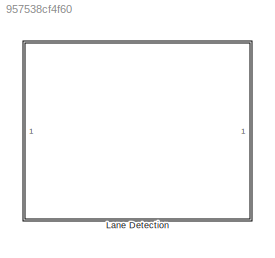
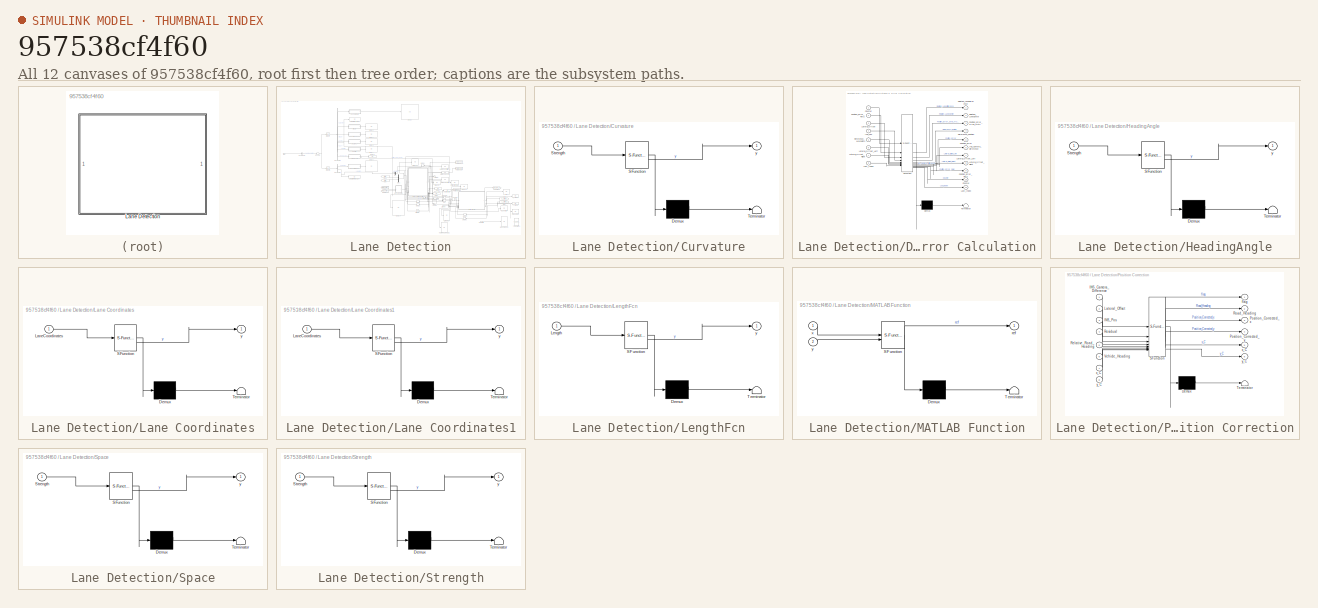
[diagram: thumbnail index - all 12 canvases of the model, root first then tree order]
MODEL slx_957538cf4f60
KIND library
CONFIG AbsTol = auto
CONFIG EnableMultiTasking = off
CONFIG FixedStep = auto
CONFIG MaxStep = auto
CONFIG MinStep = auto
CONFIG RelTol = 1e-3
CONFIG SampleTimeConstraint = Unconstrained
CONFIG SolverName = VariableStepAuto
CONFIG StartTime = 0.0
CONFIG StopTime = 10.0
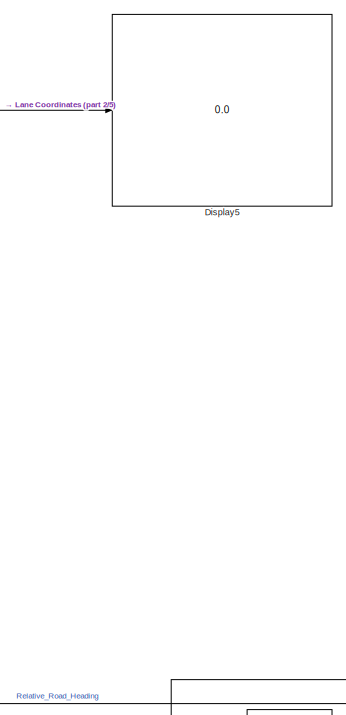
[diagram: Lane Detection - part 1/5, top center region]
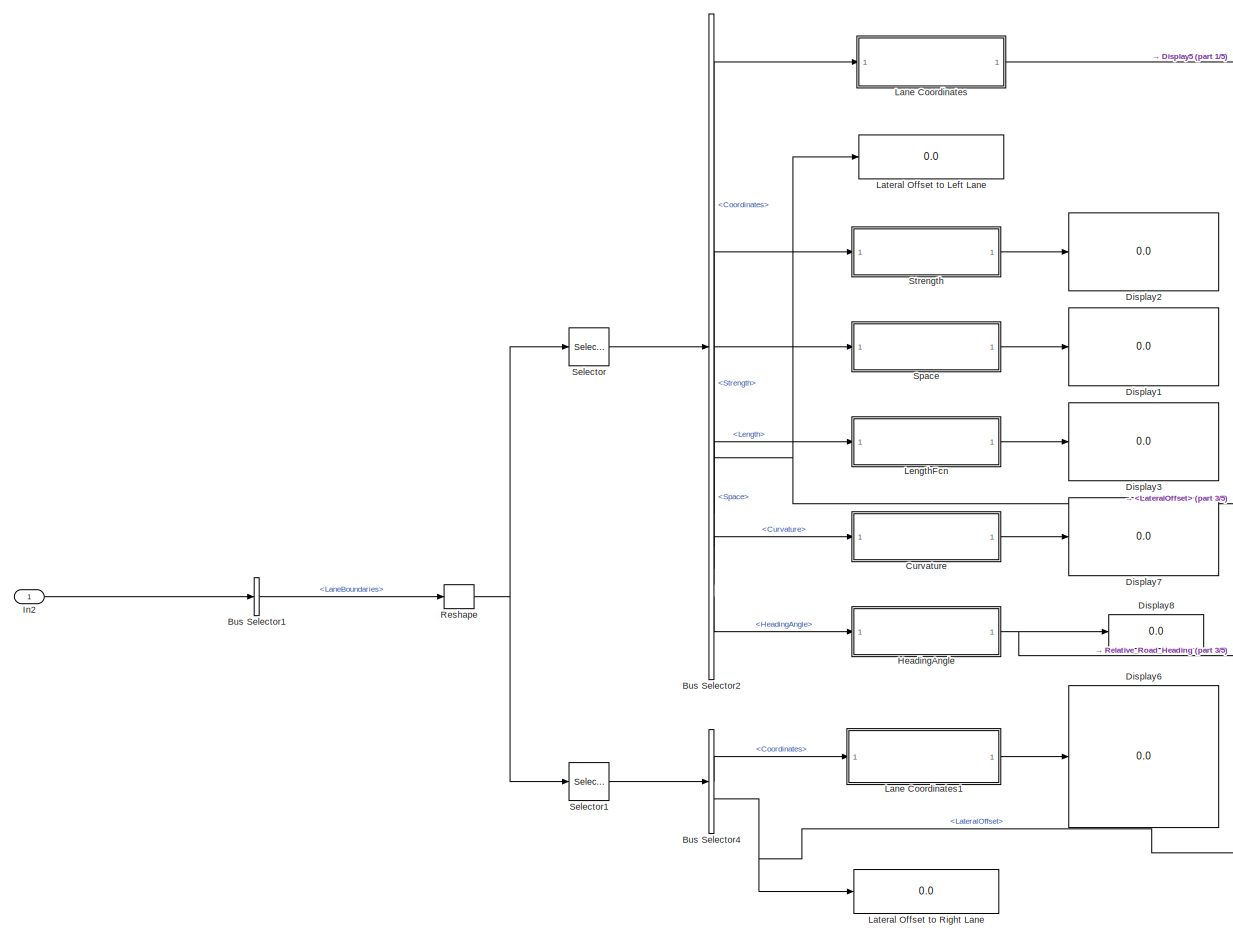
[diagram: Lane Detection - part 2/5, top left region]
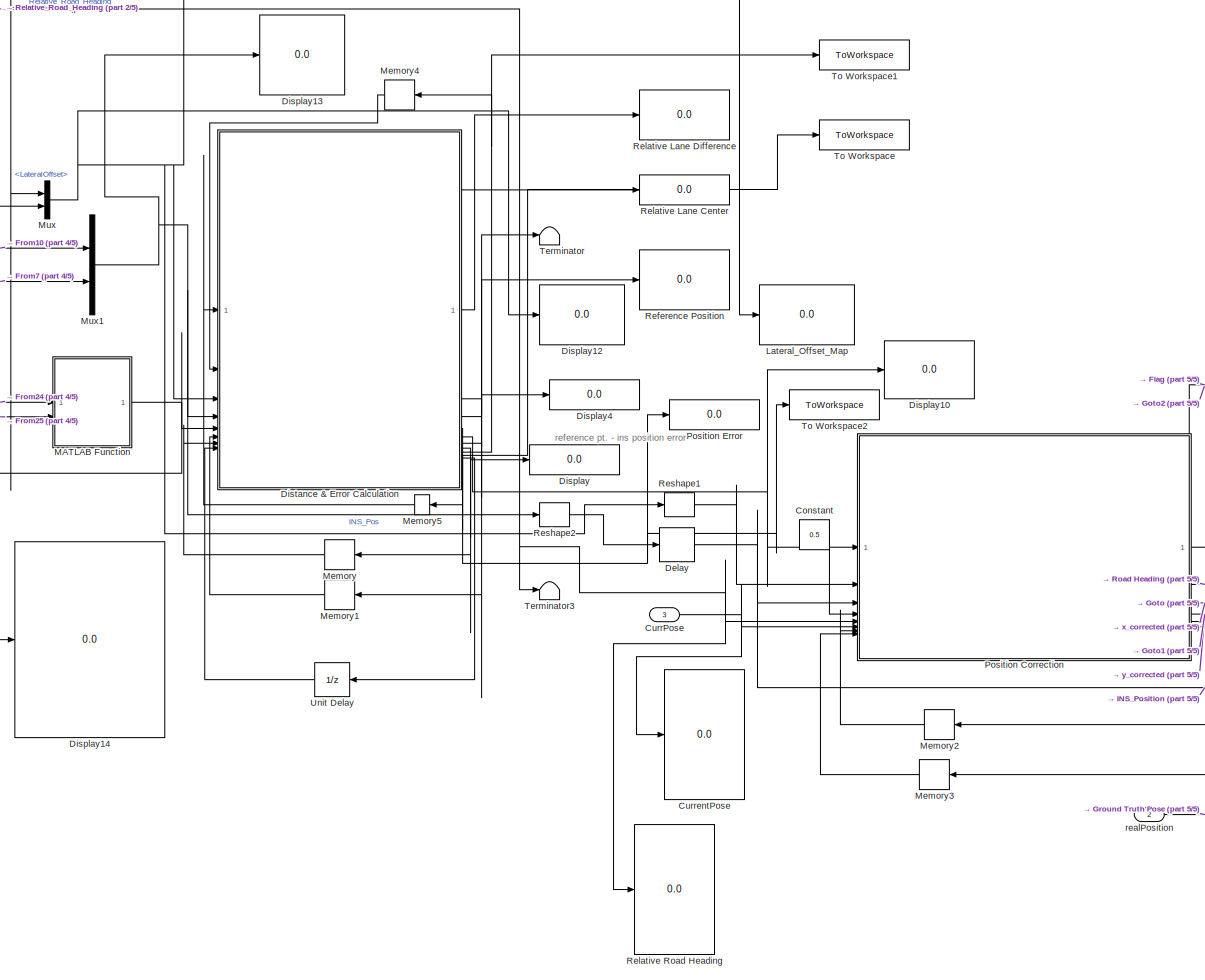
[diagram: Lane Detection - part 3/5, bottom center region]
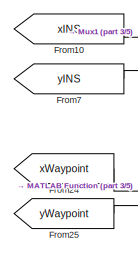
[diagram: Lane Detection - part 4/5, central region]
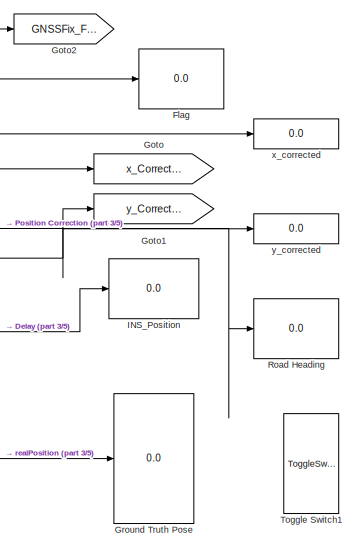
[diagram: Lane Detection - part 5/5, bottom right region]
BLOCK [SubSystem] Lane Detection
BLOCK [BusSelector] Lane Detection/Bus Selector1
  OutputSignals = LaneBoundaries
BLOCK [BusSelector] Lane Detection/Bus Selector2
  OutputSignals = Coordinates,LateralOffset,Strength,Space,Length,Curvature,HeadingAngle
BLOCK [BusSelector] Lane Detection/Bus Selector4
  OutputSignals = Coordinates,LateralOffset
BLOCK [Constant] Lane Detection/Constant
  Value = 0.5
BLOCK [Inport] Lane Detection/CurrPose
  Port = 3
BLOCK [Display] Lane Detection/CurrentPose
  Decimation = 1
BLOCK [SubSystem] Lane Detection/Curvature
  Commented = through
  ErrorFcn = Stateflow.Translate.translate
  PermitHierarchicalResolution = ExplicitOnly
  SFBlockType = MATLAB Function
  TreatAsAtomicUnit = on
BLOCK [Demux] Lane Detection/Curvature/ Demux 
  Outputs = 1
BLOCK [S-Function] Lane Detection/Curvature/ SFunction 
  EnableBusSupport = on
  FunctionName = sf_sfun
  PortCounts = [1 2]
  SFcnIsStateOwnerBlock = off
  SFunctionDeploymentMode = off
  Tag = Stateflow S-Function 70
BLOCK [Terminator] Lane Detection/Curvature/ Terminator 
BLOCK [Inport] Lane Detection/Curvature/Strength
BLOCK [Outport] Lane Detection/Curvature/y
BLOCK [Delay] Lane Detection/Delay
  Commented = through
  DelayLength = 1
  InputPortMap = u0
BLOCK [Display] Lane Detection/Display
  Decimation = 1
BLOCK [Display] Lane Detection/Display1
  Decimation = 1
BLOCK [Display] Lane Detection/Display10
  Decimation = 1
BLOCK [Display] Lane Detection/Display12
  Decimation = 1
BLOCK [Display] Lane Detection/Display13
  Decimation = 1
BLOCK [Display] Lane Detection/Display14
  Decimation = 1
BLOCK [Display] Lane Detection/Display2
  Decimation = 1
BLOCK [Display] Lane Detection/Display3
  Decimation = 1
BLOCK [Display] Lane Detection/Display4
  Decimation = 1
BLOCK [Display] Lane Detection/Display5
  Decimation = 1
BLOCK [Display] Lane Detection/Display6
  Decimation = 1
BLOCK [Display] Lane Detection/Display7
  Decimation = 1
BLOCK [Display] Lane Detection/Display8
  Decimation = 1
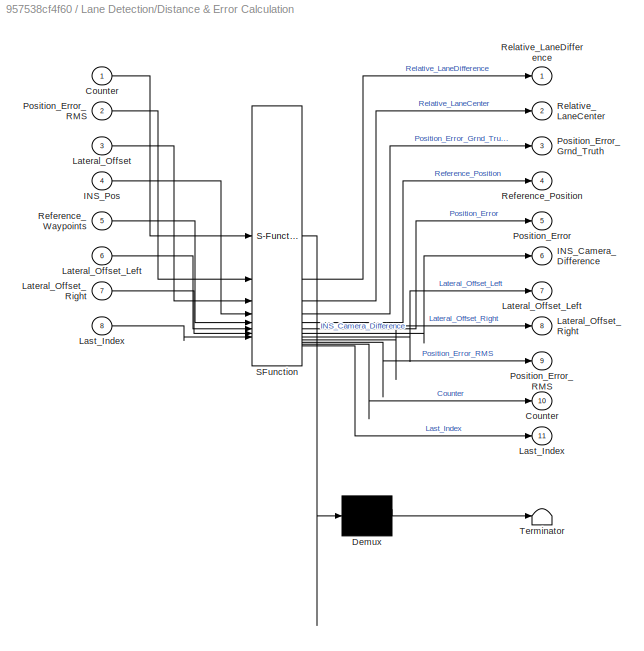
BLOCK [SubSystem] Lane Detection/Distance & Error Calculation
  ErrorFcn = Stateflow.Translate.translate
  PermitHierarchicalResolution = ExplicitOnly
  SFBlockType = MATLAB Function
  TreatAsAtomicUnit = on
BLOCK [Demux] Lane Detection/Distance & Error Calculation/ Demux 
  Outputs = 1
BLOCK [S-Function] Lane Detection/Distance & Error Calculation/ SFunction 
  EnableBusSupport = on
  FunctionName = sf_sfun
  PortCounts = [8 12]
  SFcnIsStateOwnerBlock = off
  SFunctionDeploymentMode = off
  Tag = Stateflow S-Function 5
BLOCK [Terminator] Lane Detection/Distance & Error Calculation/ Terminator 
BLOCK [Outport] Lane Detection/Distance & Error Calculation/Counter
  Port = 10
BLOCK [Inport] Lane Detection/Distance & Error Calculation/Counter 
BLOCK [Outport] Lane Detection/Distance & Error Calculation/INS_Camera_Difference
  Port = 6
BLOCK [Inport] Lane Detection/Distance & Error Calculation/INS_Pos
  Port = 4
BLOCK [Outport] Lane Detection/Distance & Error Calculation/Last_Index
  Port = 11
BLOCK [Inport] Lane Detection/Distance & Error Calculation/Last_Index 
  Port = 8
BLOCK [Inport] Lane Detection/Distance & Error Calculation/Lateral_Offset
  Port = 3
BLOCK [Outport] Lane Detection/Distance & Error Calculation/Lateral_Offset_Left
  Port = 7
BLOCK [Inport] Lane Detection/Distance & Error Calculation/Lateral_Offset_Left 
  Port = 6
BLOCK [Outport] Lane Detection/Distance & Error Calculation/Lateral_Offset_Right
  Port = 8
BLOCK [Inport] Lane Detection/Distance & Error Calculation/Lateral_Offset_Right 
  Port = 7
BLOCK [Outport] Lane Detection/Distance & Error Calculation/Position_Error
  Port = 5
BLOCK [Outport] Lane Detection/Distance & Error Calculation/Position_Error_Grnd_Truth
  Port = 3
BLOCK [Outport] Lane Detection/Distance & Error Calculation/Position_Error_RMS
  Port = 9
BLOCK [Inport] Lane Detection/Distance & Error Calculation/Position_Error_RMS 
  Port = 2
BLOCK [Outport] Lane Detection/Distance & Error Calculation/Reference_Position
  Port = 4
BLOCK [Inport] Lane Detection/Distance & Error Calculation/Reference_Waypoints
  Port = 5
BLOCK [Outport] Lane Detection/Distance & Error Calculation/Relative_LaneCenter
  Port = 2
BLOCK [Outport] Lane Detection/Distance & Error Calculation/Relative_LaneDifference
BLOCK [Display] Lane Detection/Flag
  Decimation = 1
BLOCK [From] Lane Detection/From10
  GotoTag = xINS
  TagVisibility = global
BLOCK [From] Lane Detection/From24
  GotoTag = xWaypoint
  TagVisibility = global
BLOCK [From] Lane Detection/From25
  GotoTag = yWaypoint
  TagVisibility = global
BLOCK [From] Lane Detection/From7
  GotoTag = yINS
  TagVisibility = global
BLOCK [Goto] Lane Detection/Goto
  GotoTag = x_Corrected
  TagVisibility = global
BLOCK [Goto] Lane Detection/Goto1
  GotoTag = y_Corrected
  TagVisibility = global
BLOCK [Goto] Lane Detection/Goto2
  GotoTag = GNSSFix_Flag
  TagVisibility = global
BLOCK [Display] Lane Detection/Ground Truth Pose
  Decimation = 1
BLOCK [SubSystem] Lane Detection/HeadingAngle
  Commented = through
  ErrorFcn = Stateflow.Translate.translate
  PermitHierarchicalResolution = ExplicitOnly
  SFBlockType = MATLAB Function
  TreatAsAtomicUnit = on
BLOCK [Demux] Lane Detection/HeadingAngle/ Demux 
  Outputs = 1
BLOCK [S-Function] Lane Detection/HeadingAngle/ SFunction 
  EnableBusSupport = on
  FunctionName = sf_sfun
  PortCounts = [1 2]
  SFcnIsStateOwnerBlock = off
  SFunctionDeploymentMode = off
  Tag = Stateflow S-Function 71
BLOCK [Terminator] Lane Detection/HeadingAngle/ Terminator 
BLOCK [Inport] Lane Detection/HeadingAngle/Strength
BLOCK [Outport] Lane Detection/HeadingAngle/y
BLOCK [Display] Lane Detection/INS_Position
  Decimation = 1
BLOCK [Inport] Lane Detection/In2
BLOCK [SubSystem] Lane Detection/Lane Coordinates
  ErrorFcn = Stateflow.Translate.translate
  PermitHierarchicalResolution = ExplicitOnly
  SFBlockType = MATLAB Function
  TreatAsAtomicUnit = on
BLOCK [Demux] Lane Detection/Lane Coordinates/ Demux 
  Outputs = 1
BLOCK [S-Function] Lane Detection/Lane Coordinates/ SFunction 
  EnableBusSupport = on
  FunctionName = sf_sfun
  PortCounts = [1 2]
  SFcnIsStateOwnerBlock = off
  SFunctionDeploymentMode = off
  Tag = Stateflow S-Function 12
BLOCK [Terminator] Lane Detection/Lane Coordinates/ Terminator 
BLOCK [Inport] Lane Detection/Lane Coordinates/LaneCoordinates
BLOCK [Outport] Lane Detection/Lane Coordinates/y
BLOCK [SubSystem] Lane Detection/Lane Coordinates1
  ErrorFcn = Stateflow.Translate.translate
  PermitHierarchicalResolution = ExplicitOnly
  SFBlockType = MATLAB Function
  TreatAsAtomicUnit = on
BLOCK [Demux] Lane Detection/Lane Coordinates1/ Demux 
  Outputs = 1
BLOCK [S-Function] Lane Detection/Lane Coordinates1/ SFunction 
  EnableBusSupport = on
  FunctionName = sf_sfun
  PortCounts = [1 2]
  SFcnIsStateOwnerBlock = off
  SFunctionDeploymentMode = off
  Tag = Stateflow S-Function 16
BLOCK [Terminator] Lane Detection/Lane Coordinates1/ Terminator 
BLOCK [Inport] Lane Detection/Lane Coordinates1/LaneCoordinates
BLOCK [Outport] Lane Detection/Lane Coordinates1/y
BLOCK [Display] Lane Detection/Lateral Offset to Left Lane
  Decimation = 1
BLOCK [Display] Lane Detection/Lateral Offset to Right Lane
  Decimation = 1
BLOCK [Display] Lane Detection/Lateral_Offset_Map
  Decimation = 1
BLOCK [SubSystem] Lane Detection/LengthFcn
  Commented = through
  ErrorFcn = Stateflow.Translate.translate
  PermitHierarchicalResolution = ExplicitOnly
  SFBlockType = MATLAB Function
  TreatAsAtomicUnit = on
BLOCK [Demux] Lane Detection/LengthFcn/ Demux 
  Outputs = 1
BLOCK [S-Function] Lane Detection/LengthFcn/ SFunction 
  EnableBusSupport = on
  FunctionName = sf_sfun
  PortCounts = [1 2]
  SFcnIsStateOwnerBlock = off
  SFunctionDeploymentMode = off
  Tag = Stateflow S-Function 68
BLOCK [Terminator] Lane Detection/LengthFcn/ Terminator 
BLOCK [Inport] Lane Detection/LengthFcn/Length
BLOCK [Outport] Lane Detection/LengthFcn/y
BLOCK [SubSystem] Lane Detection/MATLAB Function
  ErrorFcn = Stateflow.Translate.translate
  PermitHierarchicalResolution = ExplicitOnly
  SFBlockType = MATLAB Function
  TreatAsAtomicUnit = on
BLOCK [Demux] Lane Detection/MATLAB Function/ Demux 
  Outputs = 1
BLOCK [S-Function] Lane Detection/MATLAB Function/ SFunction 
  EnableBusSupport = on
  FunctionName = sf_sfun
  PortCounts = [2 2]
  SFcnIsStateOwnerBlock = off
  SFunctionDeploymentMode = off
  Tag = Stateflow S-Function 30
BLOCK [Terminator] Lane Detection/MATLAB Function/ Terminator 
BLOCK [Outport] Lane Detection/MATLAB Function/ref
BLOCK [Inport] Lane Detection/MATLAB Function/x
BLOCK [Inport] Lane Detection/MATLAB Function/y
  Port = 2
BLOCK [Memory] Lane Detection/Memory
  InitialCondition = LaneWidth/2
BLOCK [Memory] Lane Detection/Memory1
  InitialCondition = LaneWidth/2
BLOCK [Memory] Lane Detection/Memory2
BLOCK [Memory] Lane Detection/Memory3
BLOCK [Memory] Lane Detection/Memory4
BLOCK [Memory] Lane Detection/Memory5
BLOCK [Mux] Lane Detection/Mux
  DisplayOption = bar
  Inputs = 2
BLOCK [Mux] Lane Detection/Mux1
  DisplayOption = bar
  Inputs = 2
BLOCK [SubSystem] Lane Detection/Position Correction
  ErrorFcn = Stateflow.Translate.translate
  PermitHierarchicalResolution = ExplicitOnly
  SFBlockType = MATLAB Function
  TreatAsAtomicUnit = on
BLOCK [Demux] Lane Detection/Position Correction/ Demux 
  Outputs = 1
BLOCK [S-Function] Lane Detection/Position Correction/ SFunction 
  EnableBusSupport = on
  FunctionName = sf_sfun
  PortCounts = [8 7]
  SFcnIsStateOwnerBlock = off
  SFunctionDeploymentMode = off
  Tag = Stateflow S-Function 34
BLOCK [Terminator] Lane Detection/Position Correction/ Terminator 
BLOCK [Inport] Lane Detection/Position Correction/INS_Camera_Difference
BLOCK [Inport] Lane Detection/Position Correction/INS_Pos
  Port = 3
BLOCK [Inport] Lane Detection/Position Correction/Lateral_Offset
  Port = 2
BLOCK [Outport] Lane Detection/Position Correction/Position_Corrected_x
  Port = 3
BLOCK [Outport] Lane Detection/Position Correction/Position_Corrected_y
  Port = 4
BLOCK [Inport] Lane Detection/Position Correction/Relative_Road_Heading
  Port = 5
BLOCK [Inport] Lane Detection/Position Correction/Residual
  Port = 4
BLOCK [Outport] Lane Detection/Position Correction/Road_Heading
  Port = 2
BLOCK [Inport] Lane Detection/Position Correction/Vehicle_Heading
  Port = 6
BLOCK [Outport] Lane Detection/Position Correction/flag
BLOCK [Outport] Lane Detection/Position Correction/x_C
  Port = 5
BLOCK [Inport] Lane Detection/Position Correction/x_C 
  Port = 7
BLOCK [Outport] Lane Detection/Position Correction/y_C
  Port = 6
BLOCK [Inport] Lane Detection/Position Correction/y_C 
  Port = 8
BLOCK [Display] Lane Detection/Position Error
  Decimation = 1
BLOCK [Display] Lane Detection/Reference Position
  Decimation = 1
BLOCK [Display] Lane Detection/Relative Lane Center
  Decimation = 1
BLOCK [Display] Lane Detection/Relative Lane Difference
  Decimation = 1
BLOCK [Display] Lane Detection/Relative Road Heading
  Decimation = 1
BLOCK [Reshape] Lane Detection/Reshape
  OutputDimensionality = Customize
  OutputDimensions = [500, 1]
BLOCK [Reshape] Lane Detection/Reshape1
  OutputDimensionality = Column vector (2-D)
BLOCK [Reshape] Lane Detection/Reshape2
  OutputDimensionality = Column vector (2-D)
BLOCK [Display] Lane Detection/Road Heading
  Decimation = 1
BLOCK [Selector] Lane Detection/Selector
  IndexOptions = Index vector (dialog)
  Indices = [1]
  InputPortWidth = 500
  OutputSizes = 1
BLOCK [Selector] Lane Detection/Selector1
  IndexOptions = Index vector (dialog)
  Indices = [2]
  InputPortWidth = 500
  OutputSizes = 1
BLOCK [SubSystem] Lane Detection/Space
  Commented = through
  ErrorFcn = Stateflow.Translate.translate
  PermitHierarchicalResolution = ExplicitOnly
  SFBlockType = MATLAB Function
  TreatAsAtomicUnit = on
BLOCK [Demux] Lane Detection/Space/ Demux 
  Outputs = 1
BLOCK [S-Function] Lane Detection/Space/ SFunction 
  EnableBusSupport = on
  FunctionName = sf_sfun
  PortCounts = [1 2]
  SFcnIsStateOwnerBlock = off
  SFunctionDeploymentMode = off
  Tag = Stateflow S-Function 69
BLOCK [Terminator] Lane Detection/Space/ Terminator 
BLOCK [Inport] Lane Detection/Space/Strength
BLOCK [Outport] Lane Detection/Space/y
BLOCK [SubSystem] Lane Detection/Strength
  Commented = through
  ErrorFcn = Stateflow.Translate.translate
  PermitHierarchicalResolution = ExplicitOnly
  SFBlockType = MATLAB Function
  TreatAsAtomicUnit = on
BLOCK [Demux] Lane Detection/Strength/ Demux 
  Outputs = 1
BLOCK [S-Function] Lane Detection/Strength/ SFunction 
  EnableBusSupport = on
  FunctionName = sf_sfun
  PortCounts = [1 2]
  SFcnIsStateOwnerBlock = off
  SFunctionDeploymentMode = off
  Tag = Stateflow S-Function 67
BLOCK [Terminator] Lane Detection/Strength/ Terminator 
BLOCK [Inport] Lane Detection/Strength/Strength
BLOCK [Outport] Lane Detection/Strength/y
BLOCK [Terminator] Lane Detection/Terminator
BLOCK [Terminator] Lane Detection/Terminator3
BLOCK [ToWorkspace] Lane Detection/To Workspace
  FixptAsFi = on
  MaxDataPoints = inf
  SampleTime = -1
  Save2DSignal = 2-D array (concatenate along first dimension)
  SaveFormat = Structure
  VariableName = Counter
BLOCK [ToWorkspace] Lane Detection/To Workspace1
  FixptAsFi = on
  MaxDataPoints = inf
  SampleTime = -1
  Save2DSignal = 2-D array (concatenate along first dimension)
  SaveFormat = Structure
  VariableName = Pos_Err_Squared
BLOCK [ToWorkspace] Lane Detection/To Workspace2
  FixptAsFi = on
  MaxDataPoints = inf
  SampleTime = -1
  SaveFormat = Timeseries
  VariableName = PositionError
BLOCK [ToggleSwitchBlock] Lane Detection/Toggle Switch1
BLOCK [UnitDelay] Lane Detection/Unit Delay
  HasFrameUpgradeWarning = on
  SampleTime = -1
BLOCK [Inport] Lane Detection/realPosition
  Port = 2
BLOCK [Display] Lane Detection/x_corrected
  Decimation = 1
BLOCK [Display] Lane Detection/y_corrected
  Decimation = 1
ANNOTATION Lane Detection: reference pt. - ins position error
LINE Lane Detection/Bus Selector1:1 -> Lane Detection/Reshape:1
LINE Lane Detection/Bus Selector2:1 -> Lane Detection/Lane Coordinates:1
NET Lane Detection/Bus Selector2:2 -> Lane Detection/Lateral Offset to Left Lane:1, Lane Detection/Mux:1
LINE Lane Detection/Bus Selector2:3 -> Lane Detection/Strength:1
LINE Lane Detection/Bus Selector2:4 -> Lane Detection/Space:1
LINE Lane Detection/Bus Selector2:5 -> Lane Detection/LengthFcn:1
LINE Lane Detection/Bus Selector2:6 -> Lane Detection/Curvature:1
LINE Lane Detection/Bus Selector2:7 -> Lane Detection/HeadingAngle:1
LINE Lane Detection/Bus Selector4:1 -> Lane Detection/Lane Coordinates1:1
NET Lane Detection/Bus Selector4:2 -> Lane Detection/Lateral Offset to Right Lane:1, Lane Detection/Mux:2
LINE Lane Detection/Constant:1 -> Lane Detection/Position Correction:4
NET Lane Detection/CurrPose:1 -> Lane Detection/CurrentPose:1, Lane Detection/Position Correction:6
LINE Lane Detection/Curvature:1 -> Lane Detection/Display7:1
NET Lane Detection/Delay:1 -> Lane Detection/INS_Position:1, Lane Detection/Position Correction:3
LINE Lane Detection/Distance & Error Calculation:1 -> Lane Detection/Relative Lane Difference:1
NET Lane Detection/Distance & Error Calculation:10 -> Lane Detection/Memory5:1, Lane Detection/To Workspace:1
LINE Lane Detection/Distance & Error Calculation:11 -> Lane Detection/Unit Delay:1
LINE Lane Detection/Distance & Error Calculation:2 -> Lane Detection/Relative Lane Center:1
LINE Lane Detection/Distance & Error Calculation:3 -> Lane Detection/Terminator:1
LINE Lane Detection/Distance & Error Calculation:4 -> Lane Detection/Reference Position:1
NET Lane Detection/Distance & Error Calculation:5 -> Lane Detection/Position Error:1, Lane Detection/To Workspace2:1
NET Lane Detection/Distance & Error Calculation:6 -> Lane Detection/Display10:1, Lane Detection/Position Correction:1
NET Lane Detection/Distance & Error Calculation:7 -> Lane Detection/Display4:1, Lane Detection/Memory1:1
NET Lane Detection/Distance & Error Calculation:8 -> Lane Detection/Display:1, Lane Detection/Memory:1
NET Lane Detection/Distance & Error Calculation:9 -> Lane Detection/Memory4:1, Lane Detection/To Workspace1:1
LINE Lane Detection/From10:1 -> Lane Detection/Mux1:1
LINE Lane Detection/From24:1 -> Lane Detection/MATLAB Function:1
LINE Lane Detection/From25:1 -> Lane Detection/MATLAB Function:2
LINE Lane Detection/From7:1 -> Lane Detection/Mux1:2
NET Lane Detection/HeadingAngle:1 -> Lane Detection/Display8:1, Lane Detection/Position Correction:5, Lane Detection/Relative Road Heading:1, Lane Detection/Terminator3:1
LINE Lane Detection/In2:1 -> Lane Detection/Bus Selector1:1
LINE Lane Detection/Lane Coordinates1:1 -> Lane Detection/Display6:1
LINE Lane Detection/Lane Coordinates:1 -> Lane Detection/Display5:1
LINE Lane Detection/LengthFcn:1 -> Lane Detection/Display3:1
NET Lane Detection/MATLAB Function:1 -> Lane Detection/Display14:1, Lane Detection/Distance & Error Calculation:5
LINE Lane Detection/Memory1:1 -> Lane Detection/Distance & Error Calculation:6
LINE Lane Detection/Memory2:1 -> Lane Detection/Position Correction:7
LINE Lane Detection/Memory3:1 -> Lane Detection/Position Correction:8
LINE Lane Detection/Memory4:1 -> Lane Detection/Distance & Error Calculation:2
LINE Lane Detection/Memory5:1 -> Lane Detection/Distance & Error Calculation:1
LINE Lane Detection/Memory:1 -> Lane Detection/Distance & Error Calculation:7
NET Lane Detection/Mux1:1 -> Lane Detection/Display13:1, Lane Detection/Distance & Error Calculation:4, Lane Detection/Reshape2:1
NET Lane Detection/Mux:1 -> Lane Detection/Display12:1, Lane Detection/Distance & Error Calculation:3, Lane Detection/Lateral_Offset_Map:1, Lane Detection/Reshape1:1
NET Lane Detection/Position Correction:1 -> Lane Detection/Flag:1, Lane Detection/Goto2:1
LINE Lane Detection/Position Correction:2 -> Lane Detection/Road Heading:1
NET Lane Detection/Position Correction:3 -> Lane Detection/Goto:1, Lane Detection/x_corrected:1
NET Lane Detection/Position Correction:4 -> Lane Detection/Goto1:1, Lane Detection/y_corrected:1
LINE Lane Detection/Position Correction:5 -> Lane Detection/Memory2:1
LINE Lane Detection/Position Correction:6 -> Lane Detection/Memory3:1
LINE Lane Detection/Reshape1:1 -> Lane Detection/Position Correction:2
LINE Lane Detection/Reshape2:1 -> Lane Detection/Delay:1
NET Lane Detection/Reshape:1 -> Lane Detection/Selector1:1, Lane Detection/Selector:1
LINE Lane Detection/Selector1:1 -> Lane Detection/Bus Selector4:1
LINE Lane Detection/Selector:1 -> Lane Detection/Bus Selector2:1
LINE Lane Detection/Space:1 -> Lane Detection/Display1:1
LINE Lane Detection/Strength:1 -> Lane Detection/Display2:1
LINE Lane Detection/Unit Delay:1 -> Lane Detection/Distance & Error Calculation:8
LINE Lane Detection/realPosition:1 -> Lane Detection/Ground Truth Pose:1
note: NET lines group one-source signal fan-out (src -> all destinations, sorted); 1:1 wires keep LINE
CHART Lane Detection/LengthFcn states=1 transitions=1
  STATE_LABEL 'eML_blk_kernel()'
  STATE_LABEL 'SCRIPT:\nfunction y = fcn(Length)\n\ny = Length(1:20, 1:3);\n'
CHART Lane Detection/Space states=1 transitions=1
  STATE_LABEL 'eML_blk_kernel()'
  STATE_LABEL 'SCRIPT:\nfunction y = fcn(Strength)\n\ny = Strength(1:20, 1:3);\n'
CHART Lane Detection/Curvature states=1 transitions=1
  STATE_LABEL 'eML_blk_kernel()'
  STATE_LABEL 'SCRIPT:\nfunction y = fcn(Strength)\n\ny = Strength(1:20, 1:3);\n'
CHART Lane Detection/HeadingAngle states=1 transitions=1
  STATE_LABEL 'eML_blk_kernel()'
  STATE_LABEL 'SCRIPT:\nfunction y = fcn(Strength)\n\ny = Strength(1:20, 1:3);\n'
CHART Lane Detection/Distance & Error Calculation states=1 transitions=1
  STATE_LABEL 'eML_blk_kernel()'
  STATE_LABEL 'SCRIPT:\nfunction [Relative_LaneDifference, Relative_LaneCenter, Position_Error_Grnd_Truth, Reference_Position, Position_Error, INS_Camera_Difference, Lateral_Offset_Left, Lateral_Offset_Right, Position_Error_RMS, Counter, Last_Index] ...\n    = DistanceCalculation(Counter, Position_Error_RMS, Lateral_Offset, INS_Pos, Reference_Waypoints, Lateral_Offset_Left, Lateral_Offset_Right, Last_Index)\n\n    %...<+3156ch>'
CHART Lane Detection/Lane Coordinates states=1 transitions=1
  STATE_LABEL 'eML_blk_kernel()'
  STATE_LABEL 'SCRIPT:\nfunction y  = fcn(LaneCoordinates)\n\ny = LaneCoordinates(1:20, 1:3);\ny2 = LaneCoordinates(1, 2);\n\nend\n\n'
CHART Lane Detection/Lane Coordinates1 states=1 transitions=1
  STATE_LABEL 'eML_blk_kernel()'
  STATE_LABEL 'SCRIPT:\nfunction y = fcn(LaneCoordinates)\n\ny = LaneCoordinates(1:10, 1:2);\n'
CHART Lane Detection/MATLAB Function states=1 transitions=1
  STATE_LABEL 'eML_blk_kernel()'
  STATE_LABEL 'SCRIPT:\nfunction ref = fcn(x, y)\n\n    ref = [x, y];\nend'
CHART Lane Detection/Position Correction states=1 transitions=1
  STATE_LABEL 'eML_blk_kernel()'
  STATE_LABEL 'SCRIPT:\nfunction [flag, Road_Heading, Position_Corrected_x, Position_Corrected_y, x_C, y_C]  = ResidualCalculation(INS_Camera_Difference, Lateral_Offset, INS_Pos, Residual, Relative_Road_Heading, Vehicle_Heading, x_C, y_C)\n    \n    Road_Heading = Vehicle_Heading(3) + Relative_Road_Heading(1);\n    % flag = zeros(1, 1);\n    \n\n    Position_Corrected_x = 0;\n    Position_Corrected_y = 0;\n\n    if (Later...<+787ch>'
CHART Lane Detection/Strength states=1 transitions=1
  STATE_LABEL 'eML_blk_kernel()'
  STATE_LABEL 'SCRIPT:\nfunction y = fcn(Strength)\n\ny = Strength(1:20, 1:3);\n'
CHART  states=0 transitions=0
CHART  states=0 transitions=0
CHART  states=0 transitions=0
CHART  states=0 transitions=0
CHART  states=0 transitions=0
CHART  states=0 transitions=0
CHART  states=0 transitions=0
CHART  states=0 transitions=0
CHART  states=0 transitions=0
CHART  states=0 transitions=0
